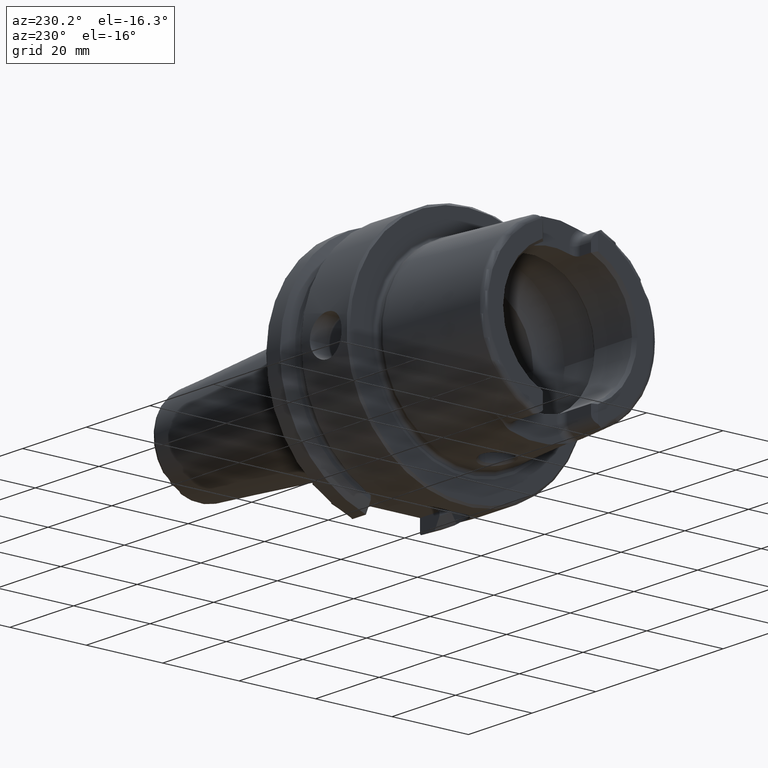
[diagram: clean part render]
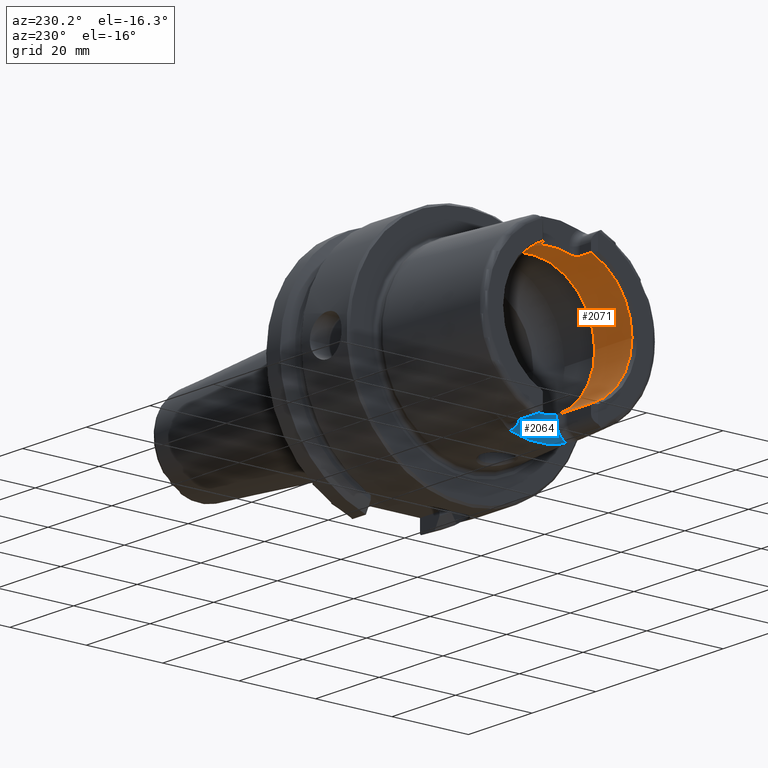
[diagram: same view with the hole feature highlighted: cylindrical wall and planar end face, labeled with their STEP entity ids]
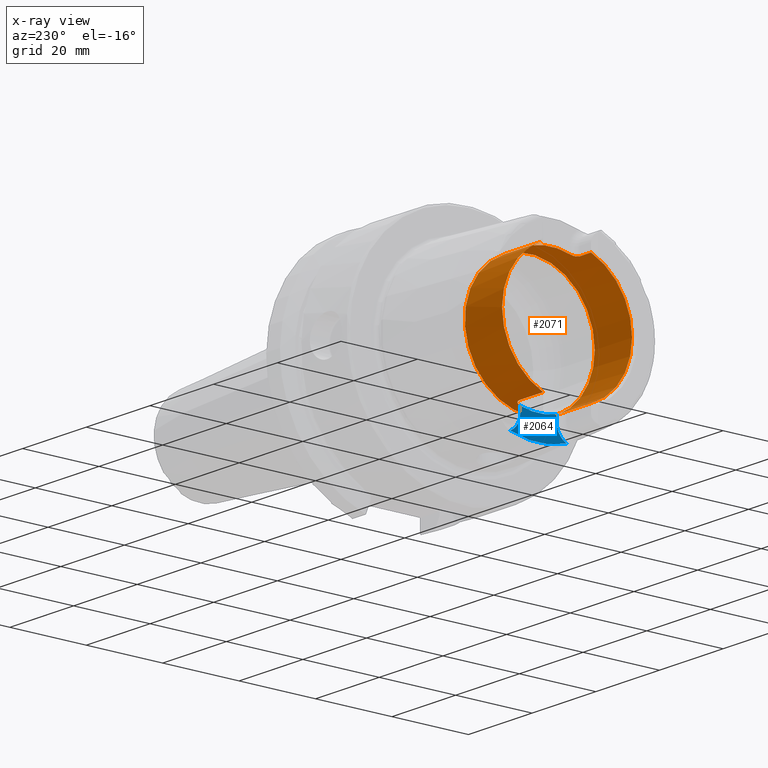
[diagram: x-ray of the same camera — body ghosted, the hole faces saturated]
A machine part, auxiliary view. The highlighted faces form one hole feature of diameter 34 mm: the cylindrical wall (entity #2071, orange) and its adjacent planar end face (entity #2064, blue) — they share a circular edge in the B-rep.
The next image is the same camera in x-ray (body ghosted, the hole faces saturated) — the bore reads through the body.
Wall:
#85=B_SPLINE_CURVE_WITH_KNOTS('',3,(#4292,#4293,#4294,#4295,#4296,#4297,
#4298,#4299,#4300,#4301),.UNSPECIFIED.,.F.,.F.,(4,2,2,2,4),(0.229569660485746,
0.289239803007022,0.348909945528297,0.405407845050218,0.46190574457214),
 .UNSPECIFIED.);
#86=B_SPLINE_CURVE_WITH_KNOTS('',3,(#4310,#4311,#4312,#4313,#4314,#4315,
#4316,#4317,#4318,#4319),.UNSPECIFIED.,.F.,.F.,(4,2,2,2,4),(0.46190574457214,
0.519239917776744,0.576574090981348,0.635410522815223,0.694246954649097),
 .UNSPECIFIED.);
#87=B_SPLINE_CURVE_WITH_KNOTS('',3,(#4328,#4329,#4330,#4331,#4332,#4333,
#4334,#4335,#4336,#4337),.UNSPECIFIED.,.F.,.F.,(4,2,2,2,4),(0.461905744572139,
0.518403644094061,0.574901543615982,0.634571686137257,0.694241828658533),
 .UNSPECIFIED.);
#88=B_SPLINE_CURVE_WITH_KNOTS('',3,(#4351,#4352,#4353,#4354,#4355,#4356,
#4357,#4358,#4359,#4360),.UNSPECIFIED.,.F.,.F.,(4,2,2,2,4),(0.229569660485747,
0.289239803007022,0.348909945528297,0.405407845050218,0.46190574457214),
 .UNSPECIFIED.);
#208=CYLINDRICAL_SURFACE('',#2316,17.);
#308=FACE_OUTER_BOUND('',#436,.T.);
#436=EDGE_LOOP('',(#1841,#1842,#1843,#1844,#1845,#1846,#1847,#1848,#1849,
#1850,#1851,#1852,#1853,#1854,#1855,#1856,#1857));
#485=LINE('',#3131,#593);
#491=LINE('',#3147,#599);
#497=LINE('',#3202,#605);
#501=LINE('',#3268,#609);
#563=LINE('',#4375,#671);
#593=VECTOR('',#2492,10.);
#599=VECTOR('',#2506,10.);
#605=VECTOR('',#2528,10.);
#609=VECTOR('',#2552,10.);
#671=VECTOR('',#2872,17.);
#769=CIRCLE('',#2304,17.);
#774=CIRCLE('',#2315,17.);
#775=CIRCLE('',#2317,17.);
#776=CIRCLE('',#2318,17.);
#777=CIRCLE('',#2319,17.);
#778=CIRCLE('',#2320,17.);
#779=CIRCLE('',#2321,17.);
#841=VERTEX_POINT('',#3084);
#848=VERTEX_POINT('',#3130);
#851=VERTEX_POINT('',#3137);
#854=VERTEX_POINT('',#3145);
#862=VERTEX_POINT('',#3192);
#865=VERTEX_POINT('',#3200);
#872=VERTEX_POINT('',#3235);
#877=VERTEX_POINT('',#3267);
#984=VERTEX_POINT('',#4290);
#986=VERTEX_POINT('',#4309);
#988=VERTEX_POINT('',#4327);
#989=VERTEX_POINT('',#4344);
#991=VERTEX_POINT('',#4371);
#992=VERTEX_POINT('',#4372);
#993=VERTEX_POINT('',#4374);
#1065=EDGE_CURVE('',#848,#841,#485,.T.);
#1073=EDGE_CURVE('',#851,#854,#491,.T.);
#1086=EDGE_CURVE('',#862,#865,#497,.T.);
#1100=EDGE_CURVE('',#877,#872,#501,.T.);
#1266=EDGE_CURVE('',#984,#865,#85,.T.);
#1270=EDGE_CURVE('',#877,#986,#86,.T.);
#1275=EDGE_CURVE('',#848,#988,#87,.T.);
#1279=EDGE_CURVE('',#989,#988,#769,.T.);
#1283=EDGE_CURVE('',#989,#854,#88,.T.);
#1287=EDGE_CURVE('',#984,#986,#774,.T.);
#1288=EDGE_CURVE('',#991,#992,#775,.T.);
#1289=EDGE_CURVE('',#991,#993,#563,.T.);
#1290=EDGE_CURVE('',#862,#993,#776,.T.);
#1291=EDGE_CURVE('',#851,#872,#777,.T.);
#1292=EDGE_CURVE('',#993,#841,#778,.T.);
#1293=EDGE_CURVE('',#992,#991,#779,.T.);
#1841=ORIENTED_EDGE('',*,*,#1288,.F.);
#1842=ORIENTED_EDGE('',*,*,#1289,.T.);
#1843=ORIENTED_EDGE('',*,*,#1290,.F.);
#1844=ORIENTED_EDGE('',*,*,#1086,.T.);
#1845=ORIENTED_EDGE('',*,*,#1266,.F.);
#1846=ORIENTED_EDGE('',*,*,#1287,.T.);
#1847=ORIENTED_EDGE('',*,*,#1270,.F.);
#1848=ORIENTED_EDGE('',*,*,#1100,.T.);
#1849=ORIENTED_EDGE('',*,*,#1291,.F.);
#1850=ORIENTED_EDGE('',*,*,#1073,.T.);
#1851=ORIENTED_EDGE('',*,*,#1283,.F.);
#1852=ORIENTED_EDGE('',*,*,#1279,.T.);
#1853=ORIENTED_EDGE('',*,*,#1275,.F.);
#1854=ORIENTED_EDGE('',*,*,#1065,.T.);
#1855=ORIENTED_EDGE('',*,*,#1292,.F.);
#1856=ORIENTED_EDGE('',*,*,#1289,.F.);
#1857=ORIENTED_EDGE('',*,*,#1293,.F.);
#2071=ADVANCED_FACE('',(#308),#208,.F.);
#2304=AXIS2_PLACEMENT_3D('',#4345,#2842,#2843);
#2315=AXIS2_PLACEMENT_3D('',#4369,#2866,#2867);
#2316=AXIS2_PLACEMENT_3D('',#4370,#2868,#2869);
#2317=AXIS2_PLACEMENT_3D('',#4373,#2870,#2871);
#2318=AXIS2_PLACEMENT_3D('',#4376,#2873,#2874);
#2319=AXIS2_PLACEMENT_3D('',#4377,#2875,#2876);
#2320=AXIS2_PLACEMENT_3D('',#4378,#2877,#2878);
#2321=AXIS2_PLACEMENT_3D('',#4379,#2879,#2880);
#2492=DIRECTION('',(-1.,0.,0.));
#2506=DIRECTION('',(1.,0.,0.));
#2528=DIRECTION('',(1.,0.,0.));
#2552=DIRECTION('',(-1.,0.,0.));
#2842=DIRECTION('center_axis',(-1.,0.,0.));
#2843=DIRECTION('ref_axis',(0.,1.,0.));
#2866=DIRECTION('center_axis',(-1.,0.,0.));
#2867=DIRECTION('ref_axis',(0.,1.,0.));
#2868=DIRECTION('center_axis',(-1.,0.,0.));
#2869=DIRECTION('ref_axis',(0.,1.,0.));
#2870=DIRECTION('center_axis',(-1.,0.,0.));
#2871=DIRECTION('ref_axis',(0.,0.,1.));
#2872=DIRECTION('',(-1.,0.,0.));
#2873=DIRECTION('center_axis',(1.,0.,0.));
#2874=DIRECTION('ref_axis',(0.,-1.,0.));
#2875=DIRECTION('center_axis',(1.,0.,0.));
#2876=DIRECTION('ref_axis',(0.,-1.,0.));
#2877=DIRECTION('center_axis',(1.,0.,0.));
#2878=DIRECTION('ref_axis',(0.,-1.,0.));
#2879=DIRECTION('center_axis',(-1.,0.,0.));
#2880=DIRECTION('ref_axis',(0.,0.,1.));
#3084=CARTESIAN_POINT('',(-31.,-6.27,-15.8014904360317));
#3130=CARTESIAN_POINT('',(-23.5,-6.27,-15.8014904360317));
#3131=CARTESIAN_POINT('',(-25.6423502691896,-6.27,-15.8014904360317));
#3137=CARTESIAN_POINT('',(-31.,6.27,-15.8014904360317));
#3145=CARTESIAN_POINT('',(-23.5,6.27,-15.8014904360317));
#3147=CARTESIAN_POINT('',(-25.6423502691896,6.27,-15.8014904360317));
#3192=CARTESIAN_POINT('',(-31.,-6.27,15.8014904360317));
#3200=CARTESIAN_POINT('',(-27.5,-6.27,15.8014904360317));
#3202=CARTESIAN_POINT('',(-25.6423502691896,-6.27,15.8014904360317));
#3235=CARTESIAN_POINT('',(-31.,6.27,15.8014904360317));
#3267=CARTESIAN_POINT('',(-27.5,6.27,15.8014904360317));
#3268=CARTESIAN_POINT('',(-25.6423502691896,6.27,15.8014904360317));
#4290=CARTESIAN_POINT('',(-26.,-4.77,16.3170800083839));
#4292=CARTESIAN_POINT('Ctrl Pts',(-26.,-4.77,16.3170800083839));
#4293=CARTESIAN_POINT('Ctrl Pts',(-26.,-4.96091029208457,16.2612708750845));
#4294=CARTESIAN_POINT('Ctrl Pts',(-26.0385404635846,-5.16378617408596,16.1979610859593));
#4295=CARTESIAN_POINT('Ctrl Pts',(-26.1950909803916,-5.53690543536203,16.0742436586733));
#4296=CARTESIAN_POINT('Ctrl Pts',(-26.3130861154278,-5.70721093092864,16.01400454532));
#4297=CARTESIAN_POINT('Ctrl Pts',(-26.5811791540138,-5.96960590306613,15.9179857910505));
#4298=CARTESIAN_POINT('Ctrl Pts',(-26.7467155703026,-6.082078486584,15.8749745356799));
#4299=CARTESIAN_POINT('Ctrl Pts',(-27.1119229195206,-6.23232125085234,15.8165946761251));
#4300=CARTESIAN_POINT('Ctrl Pts',(-27.3116736682603,-6.27,15.8014904360317));
#4301=CARTESIAN_POINT('Ctrl Pts',(-27.5,-6.27,15.8014904360317));
#4309=CARTESIAN_POINT('',(-26.,4.77,16.3170800083839));
#4310=CARTESIAN_POINT('Ctrl Pts',(-27.5,6.27,15.8014904360317));
#4311=CARTESIAN_POINT('Ctrl Pts',(-27.308886089318,6.27,15.8014904360317));
#4312=CARTESIAN_POINT('Ctrl Pts',(-27.1064099842243,6.23121026569193,15.8170435837256));
#4313=CARTESIAN_POINT('Ctrl Pts',(-26.7371019784685,6.07691823919465,15.8769617281184));
#4314=CARTESIAN_POINT('Ctrl Pts',(-26.5701870418163,5.96150738537594,15.9210500039306));
#4315=CARTESIAN_POINT('Ctrl Pts',(-26.3050641818979,5.69638452545756,16.017853695422));
#4316=CARTESIAN_POINT('Ctrl Pts',(-26.1900212186221,5.52750941197086,16.0774506535614));
#4317=CARTESIAN_POINT('Ctrl Pts',(-26.0374824299787,5.15846789211413,16.1996292802954));
#4318=CARTESIAN_POINT('Ctrl Pts',(-26.,4.95824289522375,16.2620506397863));
#4319=CARTESIAN_POINT('Ctrl Pts',(-26.,4.77,16.3170800083839));
#4327=CARTESIAN_POINT('',(-22.,-4.77,-16.3170800083839));
#4328=CARTESIAN_POINT('Ctrl Pts',(-23.5,-6.27,-15.8014904360317));
#4329=CARTESIAN_POINT('Ctrl Pts',(-23.3116736682603,-6.27,-15.8014904360317));
#4330=CARTESIAN_POINT('Ctrl Pts',(-23.1119229195206,-6.23232125085234,-15.8165946761251));
#4331=CARTESIAN_POINT('Ctrl Pts',(-22.7467155703026,-6.082078486584,-15.8749745356799));
#4332=CARTESIAN_POINT('Ctrl Pts',(-22.5811791540138,-5.96960590306613,-15.9179857910505));
#4333=CARTESIAN_POINT('Ctrl Pts',(-22.3130861154278,-5.70721093092864,-16.01400454532));
#4334=CARTESIAN_POINT('Ctrl Pts',(-22.1950909803916,-5.53690543536204,-16.0742436586733));
#4335=CARTESIAN_POINT('Ctrl Pts',(-22.0385404635846,-5.16378617408596,-16.1979610859593));
#4336=CARTESIAN_POINT('Ctrl Pts',(-22.,-4.96091029208457,-16.2612708750845));
#4337=CARTESIAN_POINT('Ctrl Pts',(-22.,-4.77,-16.3170800083839));
#4344=CARTESIAN_POINT('',(-22.,4.77,-16.3170800083839));
#4345=CARTESIAN_POINT('Origin',(-22.,0.,0.));
#4351=CARTESIAN_POINT('Ctrl Pts',(-22.,4.77,-16.3170800083839));
#4352=CARTESIAN_POINT('Ctrl Pts',(-22.,4.96091029208457,-16.2612708750845));
#4353=CARTESIAN_POINT('Ctrl Pts',(-22.0385404635846,5.16378617408596,-16.1979610859593));
#4354=CARTESIAN_POINT('Ctrl Pts',(-22.1950909803916,5.53690543536204,-16.0742436586733));
#4355=CARTESIAN_POINT('Ctrl Pts',(-22.3130861154278,5.70721093092864,-16.01400454532));
#4356=CARTESIAN_POINT('Ctrl Pts',(-22.5811791540138,5.96960590306613,-15.9179857910505));
#4357=CARTESIAN_POINT('Ctrl Pts',(-22.7467155703026,6.082078486584,-15.8749745356799));
#4358=CARTESIAN_POINT('Ctrl Pts',(-23.1119229195206,6.23232125085234,-15.8165946761251));
#4359=CARTESIAN_POINT('Ctrl Pts',(-23.3116736682603,6.27,-15.8014904360317));
#4360=CARTESIAN_POINT('Ctrl Pts',(-23.5,6.27,-15.8014904360317));
#4369=CARTESIAN_POINT('Origin',(-26.,0.,0.));
#4370=CARTESIAN_POINT('Origin',(-25.6423502691896,0.,0.));
#4371=CARTESIAN_POINT('',(-19.2847005383793,-17.,2.0818995585505E-15));
#4372=CARTESIAN_POINT('',(-19.2847005383793,-2.0818995585505E-15,-17.));
#4373=CARTESIAN_POINT('Origin',(-19.2847005383793,0.,0.));
#4374=CARTESIAN_POINT('',(-31.,-17.,2.0818995585505E-15));
#4375=CARTESIAN_POINT('',(-25.6423502691896,-17.,2.0818995585505E-15));
#4376=CARTESIAN_POINT('Origin',(-31.,0.,0.));
#4377=CARTESIAN_POINT('Origin',(-31.,0.,0.));
#4378=CARTESIAN_POINT('Origin',(-31.,0.,0.));
#4379=CARTESIAN_POINT('Origin',(-19.2847005383793,0.,0.));
End face:
#134=PLANE('',#2303);
#301=FACE_OUTER_BOUND('',#429,.T.);
#429=EDGE_LOOP('',(#1811,#1812,#1813,#1814,#1815,#1816));
#559=LINE('',#4338,#667);
#561=LINE('',#4347,#669);
#667=VECTOR('',#2832,10.);
#669=VECTOR('',#2844,10.);
#715=CIRCLE('',#2192,23.2184268537074);
#767=CIRCLE('',#2298,4.38);
#769=CIRCLE('',#2304,17.);
#770=CIRCLE('',#2305,4.38);
#885=VERTEX_POINT('',#3433);
#886=VERTEX_POINT('',#3444);
#987=VERTEX_POINT('',#4323);
#988=VERTEX_POINT('',#4327);
#989=VERTEX_POINT('',#4344);
#990=VERTEX_POINT('',#4346);
#1112=EDGE_CURVE('',#885,#886,#715,.T.);
#1274=EDGE_CURVE('',#987,#885,#767,.T.);
#1276=EDGE_CURVE('',#988,#987,#559,.T.);
#1279=EDGE_CURVE('',#989,#988,#769,.T.);
#1280=EDGE_CURVE('',#990,#989,#561,.T.);
#1281=EDGE_CURVE('',#886,#990,#770,.T.);
#1811=ORIENTED_EDGE('',*,*,#1274,.F.);
#1812=ORIENTED_EDGE('',*,*,#1276,.F.);
#1813=ORIENTED_EDGE('',*,*,#1279,.F.);
#1814=ORIENTED_EDGE('',*,*,#1280,.F.);
#1815=ORIENTED_EDGE('',*,*,#1281,.F.);
#1816=ORIENTED_EDGE('',*,*,#1112,.F.);
#2064=ADVANCED_FACE('',(#301),#134,.T.);
#2192=AXIS2_PLACEMENT_3D('',#3445,#2562,#2563);
#2298=AXIS2_PLACEMENT_3D('',#4325,#2828,#2829);
#2303=AXIS2_PLACEMENT_3D('',#4343,#2840,#2841);
#2304=AXIS2_PLACEMENT_3D('',#4345,#2842,#2843);
#2305=AXIS2_PLACEMENT_3D('',#4348,#2845,#2846);
#2562=DIRECTION('center_axis',(1.,0.,0.));
#2563=DIRECTION('ref_axis',(0.,1.,0.));
#2828=DIRECTION('center_axis',(-1.,0.,0.));
#2829=DIRECTION('ref_axis',(0.,0.522806483831831,-0.852451394780604));
#2832=DIRECTION('',(0.,0.,-1.));
#2840=DIRECTION('center_axis',(-1.,0.,0.));
#2841=DIRECTION('ref_axis',(0.,0.,1.));
#2842=DIRECTION('center_axis',(-1.,0.,0.));
#2843=DIRECTION('ref_axis',(0.,1.,0.));
#2844=DIRECTION('',(0.,0.,1.));
#2845=DIRECTION('center_axis',(-1.,0.,0.));
#2846=DIRECTION('ref_axis',(0.,-0.522806483831831,-0.852451394780604));
#3433=CARTESIAN_POINT('',(-22.,-7.4031250016059,-22.0065691504051));
#3444=CARTESIAN_POINT('',(-22.,7.4031250016059,-22.0065691504051));
#3445=CARTESIAN_POINT('Origin',(-22.,0.,0.));
#4323=CARTESIAN_POINT('',(-22.,-4.77,-17.99));
#4325=CARTESIAN_POINT('Origin',(-22.,-9.15,-17.99));
#4327=CARTESIAN_POINT('',(-22.,-4.77,-16.3170800083839));
#4338=CARTESIAN_POINT('',(-22.,-4.77,-17.8001077154309));
#4343=CARTESIAN_POINT('Origin',(-22.,0.,-17.6102154308617));
#4344=CARTESIAN_POINT('',(-22.,4.77,-16.3170800083839));
#4345=CARTESIAN_POINT('Origin',(-22.,0.,0.));
#4346=CARTESIAN_POINT('',(-22.,4.77,-17.99));
#4347=CARTESIAN_POINT('',(-22.,4.77,-14.3051077154309));
#4348=CARTESIAN_POINT('Origin',(-22.,9.15,-17.99));